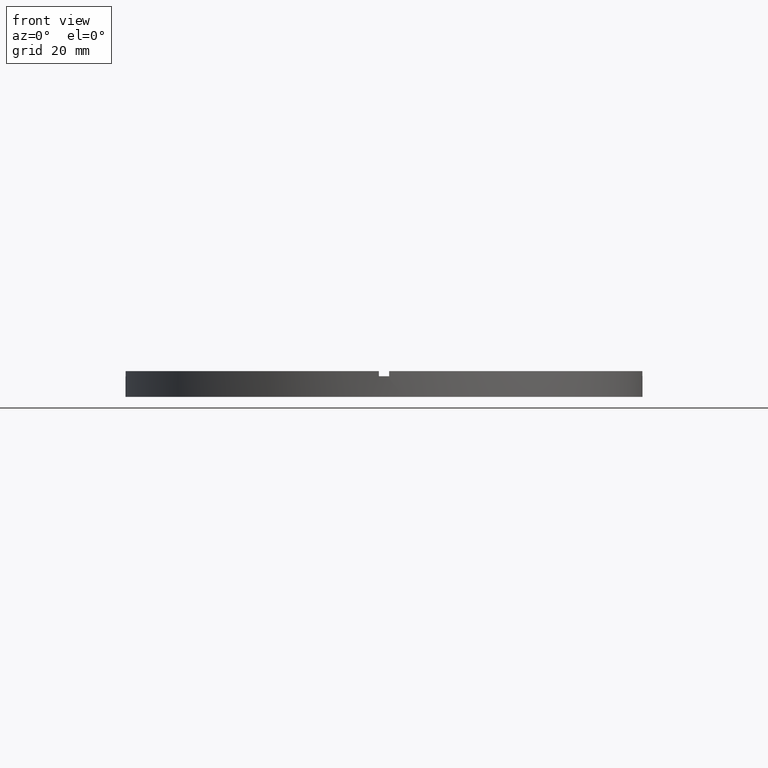
[diagram: clean part render]
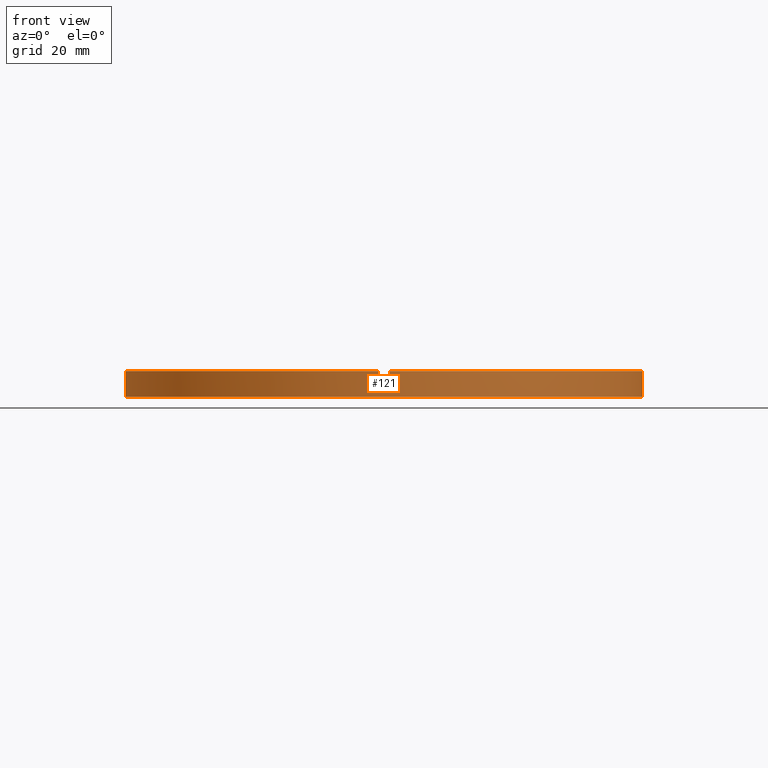
[diagram: same view with one face highlighted and labeled with its STEP entity id]
A machine part, front view. The second image highlights one B-rep face of the part: STEP entity #121.
In plain terms, the highlighted cylindrical surface (partial cylindrical patch) has radius 50 mm, axis along (-0, -0, -1).
Its self-contained STEP definition (entity closure, byte-faithful):
#1 = VECTOR ( 'NONE', #499, 1000.000000000000000 ) ;
#8 = DIRECTION ( 'NONE',  ( 1.000000000000000000, 0.000000000000000000, 0.000000000000000000 ) ) ;
#13 = EDGE_CURVE ( 'NONE', #704, #395, #547, .T. ) ;
#28 = CARTESIAN_POINT ( 'NONE',  ( -50.00000000000000000, 0.000000000000000000, 0.000000000000000000 ) ) ;
#42 = VECTOR ( 'NONE', #219, 1000.000000000000000 ) ;
#57 = LINE ( 'NONE', #425, #329 ) ;
#66 = CARTESIAN_POINT ( 'NONE',  ( 50.00000000000000000, 6.123233995736766085E-15, 5.000000000000000000 ) ) ;
#68 = CARTESIAN_POINT ( 'NONE',  ( 0.000000000000000000, 0.000000000000000000, 5.000000000000000000 ) ) ;
#74 = DIRECTION ( 'NONE',  ( 1.000000000000000000, 0.000000000000000000, 0.000000000000000000 ) ) ;
#75 = DIRECTION ( 'NONE',  ( -0.000000000000000000, -0.000000000000000000, -1.000000000000000000 ) ) ;
#76 = CARTESIAN_POINT ( 'NONE',  ( -1.000000000000156763, -49.98999899979995121, 5.000000000000000000 ) ) ;
#78 = EDGE_CURVE ( 'NONE', #704, #651, #550, .T. ) ;
#85 = CARTESIAN_POINT ( 'NONE',  ( 50.00000000000000000, 6.123233995736766085E-15, 0.000000000000000000 ) ) ;
#121 = ADVANCED_FACE ( 'NONE', ( #304 ), #305, .T. ) ;
#125 = EDGE_LOOP ( 'NONE', ( #400, #157, #649, #127, #154, #662, #457, #648, #407, #317, #318, #449 ) ) ;
#127 = ORIENTED_EDGE ( 'NONE', *, *, #768, .F. ) ;
#134 = VERTEX_POINT ( 'NONE', #76 ) ;
#145 = CARTESIAN_POINT ( 'NONE',  ( -49.98999899979995121, -1.000000000000031530, 5.000000000000000000 ) ) ;
#151 = VERTEX_POINT ( 'NONE', #28 ) ;
#154 = ORIENTED_EDGE ( 'NONE', *, *, #238, .T. ) ;
#156 = VERTEX_POINT ( 'NONE', #145 ) ;
#157 = ORIENTED_EDGE ( 'NONE', *, *, #13, .F. ) ;
#168 = CARTESIAN_POINT ( 'NONE',  ( 0.000000000000000000, 0.000000000000000000, 5.000000000000000000 ) ) ;
#182 = CARTESIAN_POINT ( 'NONE',  ( -50.00000000000000000, 0.000000000000000000, 4.000000000000000000 ) ) ;
#188 = CIRCLE ( 'NONE', #549, 50.00000000000000000 ) ;
#200 = AXIS2_PLACEMENT_3D ( 'NONE', #222, #531, #623 ) ;
#219 = DIRECTION ( 'NONE',  ( 0.000000000000000000, 0.000000000000000000, 1.000000000000000000 ) ) ;
#222 = CARTESIAN_POINT ( 'NONE',  ( 0.000000000000000000, 0.000000000000000000, 5.000000000000000000 ) ) ;
#225 = EDGE_CURVE ( 'NONE', #391, #151, #593, .T. ) ;
#229 = CIRCLE ( 'NONE', #283, 50.00000000000000000 ) ;
#234 = CIRCLE ( 'NONE', #290, 50.00000000000000000 ) ;
#238 = EDGE_CURVE ( 'NONE', #314, #710, #57, .T. ) ;
#246 = DIRECTION ( 'NONE',  ( -0.000000000000000000, 0.000000000000000000, 1.000000000000000000 ) ) ;
#257 = CARTESIAN_POINT ( 'NONE',  ( 49.98999899979995121, -1.000000000000155209, 4.000000000000000000 ) ) ;
#260 = CIRCLE ( 'NONE', #274, 50.00000000000000000 ) ;
#274 = AXIS2_PLACEMENT_3D ( 'NONE', #168, #380, #702 ) ;
#277 = EDGE_CURVE ( 'NONE', #151, #666, #229, .T. ) ;
#278 = CARTESIAN_POINT ( 'NONE',  ( 0.000000000000000000, 0.000000000000000000, 4.000000000000000000 ) ) ;
#283 = AXIS2_PLACEMENT_3D ( 'NONE', #744, #319, #668 ) ;
#284 = CARTESIAN_POINT ( 'NONE',  ( 0.9999999999998432365, -49.98999899979995831, 5.000000000000000000 ) ) ;
#290 = AXIS2_PLACEMENT_3D ( 'NONE', #482, #346, #645 ) ;
#301 = AXIS2_PLACEMENT_3D ( 'NONE', #278, #340, #586 ) ;
#304 = FACE_OUTER_BOUND ( 'NONE', #125, .T. ) ;
#305 = CYLINDRICAL_SURFACE ( 'NONE', #200, 50.00000000000000000 ) ;
#314 = VERTEX_POINT ( 'NONE', #284 ) ;
#316 = CARTESIAN_POINT ( 'NONE',  ( -49.98999899979995121, -1.000000000000031530, 4.000000000000000000 ) ) ;
#317 = ORIENTED_EDGE ( 'NONE', *, *, #555, .F. ) ;
#318 = ORIENTED_EDGE ( 'NONE', *, *, #225, .T. ) ;
#319 = DIRECTION ( 'NONE',  ( 0.000000000000000000, 0.000000000000000000, 1.000000000000000000 ) ) ;
#329 = VECTOR ( 'NONE', #75, 1000.000000000000000 ) ;
#330 = CARTESIAN_POINT ( 'NONE',  ( 50.00000000000000000, 6.123233995736766085E-15, 4.000000000000000000 ) ) ;
#339 = AXIS2_PLACEMENT_3D ( 'NONE', #464, #246, #8 ) ;
#340 = DIRECTION ( 'NONE',  ( 0.000000000000000000, 0.000000000000000000, 1.000000000000000000 ) ) ;
#346 = DIRECTION ( 'NONE',  ( 0.000000000000000000, 0.000000000000000000, 1.000000000000000000 ) ) ;
#361 = CARTESIAN_POINT ( 'NONE',  ( -50.00000000000000000, 0.000000000000000000, 5.000000000000000000 ) ) ;
#376 = VERTEX_POINT ( 'NONE', #674 ) ;
#380 = DIRECTION ( 'NONE',  ( 0.000000000000000000, 0.000000000000000000, 1.000000000000000000 ) ) ;
#391 = VERTEX_POINT ( 'NONE', #182 ) ;
#395 = VERTEX_POINT ( 'NONE', #330 ) ;
#400 = ORIENTED_EDGE ( 'NONE', *, *, #673, .F. ) ;
#407 = ORIENTED_EDGE ( 'NONE', *, *, #611, .T. ) ;
#418 = DIRECTION ( 'NONE',  ( 0.000000000000000000, 0.000000000000000000, 1.000000000000000000 ) ) ;
#425 = CARTESIAN_POINT ( 'NONE',  ( 0.9999999999998432365, -49.98999899979995831, 5.000000000000000000 ) ) ;
#430 = EDGE_CURVE ( 'NONE', #376, #134, #772, .T. ) ;
#439 = CARTESIAN_POINT ( 'NONE',  ( -1.000000000000156763, -49.98999899979995121, 5.000000000000000000 ) ) ;
#449 = ORIENTED_EDGE ( 'NONE', *, *, #277, .T. ) ;
#457 = ORIENTED_EDGE ( 'NONE', *, *, #430, .T. ) ;
#464 = CARTESIAN_POINT ( 'NONE',  ( 0.000000000000000000, 0.000000000000000000, 4.000000000000000000 ) ) ;
#482 = CARTESIAN_POINT ( 'NONE',  ( 0.000000000000000000, 0.000000000000000000, 4.000000000000000000 ) ) ;
#499 = DIRECTION ( 'NONE',  ( -0.000000000000000000, -0.000000000000000000, -1.000000000000000000 ) ) ;
#505 = CARTESIAN_POINT ( 'NONE',  ( 49.98999899979995121, -1.000000000000155209, 5.000000000000000000 ) ) ;
#509 = LINE ( 'NONE', #604, #520 ) ;
#511 = DIRECTION ( 'NONE',  ( 0.000000000000000000, 0.000000000000000000, 1.000000000000000000 ) ) ;
#512 = VECTOR ( 'NONE', #511, 1000.000000000000000 ) ;
#520 = VECTOR ( 'NONE', #627, 1000.000000000000000 ) ;
#525 = CIRCLE ( 'NONE', #339, 50.00000000000000000 ) ;
#528 = LINE ( 'NONE', #66, #1 ) ;
#531 = DIRECTION ( 'NONE',  ( -0.000000000000000000, -0.000000000000000000, -1.000000000000000000 ) ) ;
#547 = CIRCLE ( 'NONE', #301, 50.00000000000000000 ) ;
#549 = AXIS2_PLACEMENT_3D ( 'NONE', #68, #418, #74 ) ;
#550 = LINE ( 'NONE', #505, #42 ) ;
#555 = EDGE_CURVE ( 'NONE', #391, #667, #234, .T. ) ;
#558 = DIRECTION ( 'NONE',  ( -0.000000000000000000, -0.000000000000000000, -1.000000000000000000 ) ) ;
#586 = DIRECTION ( 'NONE',  ( 1.000000000000000000, 0.000000000000000000, 0.000000000000000000 ) ) ;
#589 = VECTOR ( 'NONE', #558, 1000.000000000000000 ) ;
#593 = LINE ( 'NONE', #361, #589 ) ;
#604 = CARTESIAN_POINT ( 'NONE',  ( -49.98999899979995121, -1.000000000000031530, 5.000000000000000000 ) ) ;
#611 = EDGE_CURVE ( 'NONE', #156, #667, #509, .T. ) ;
#614 = EDGE_CURVE ( 'NONE', #156, #134, #260, .T. ) ;
#615 = EDGE_CURVE ( 'NONE', #376, #710, #525, .T. ) ;
#623 = DIRECTION ( 'NONE',  ( -1.000000000000000000, 0.000000000000000000, 0.000000000000000000 ) ) ;
#627 = DIRECTION ( 'NONE',  ( -0.000000000000000000, -0.000000000000000000, -1.000000000000000000 ) ) ;
#645 = DIRECTION ( 'NONE',  ( 1.000000000000000000, 0.000000000000000000, 0.000000000000000000 ) ) ;
#648 = ORIENTED_EDGE ( 'NONE', *, *, #614, .F. ) ;
#649 = ORIENTED_EDGE ( 'NONE', *, *, #78, .T. ) ;
#651 = VERTEX_POINT ( 'NONE', #684 ) ;
#662 = ORIENTED_EDGE ( 'NONE', *, *, #615, .F. ) ;
#664 = CARTESIAN_POINT ( 'NONE',  ( 0.9999999999998432365, -49.98999899979995831, 4.000000000000000000 ) ) ;
#666 = VERTEX_POINT ( 'NONE', #85 ) ;
#667 = VERTEX_POINT ( 'NONE', #316 ) ;
#668 = DIRECTION ( 'NONE',  ( 1.000000000000000000, 0.000000000000000000, 0.000000000000000000 ) ) ;
#673 = EDGE_CURVE ( 'NONE', #395, #666, #528, .T. ) ;
#674 = CARTESIAN_POINT ( 'NONE',  ( -1.000000000000156763, -49.98999899979995121, 4.000000000000000000 ) ) ;
#684 = CARTESIAN_POINT ( 'NONE',  ( 49.98999899979995121, -1.000000000000155209, 5.000000000000000000 ) ) ;
#702 = DIRECTION ( 'NONE',  ( 1.000000000000000000, 0.000000000000000000, 0.000000000000000000 ) ) ;
#704 = VERTEX_POINT ( 'NONE', #257 ) ;
#710 = VERTEX_POINT ( 'NONE', #664 ) ;
#744 = CARTESIAN_POINT ( 'NONE',  ( 0.000000000000000000, 0.000000000000000000, 0.000000000000000000 ) ) ;
#768 = EDGE_CURVE ( 'NONE', #314, #651, #188, .T. ) ;
#772 = LINE ( 'NONE', #439, #512 ) ;